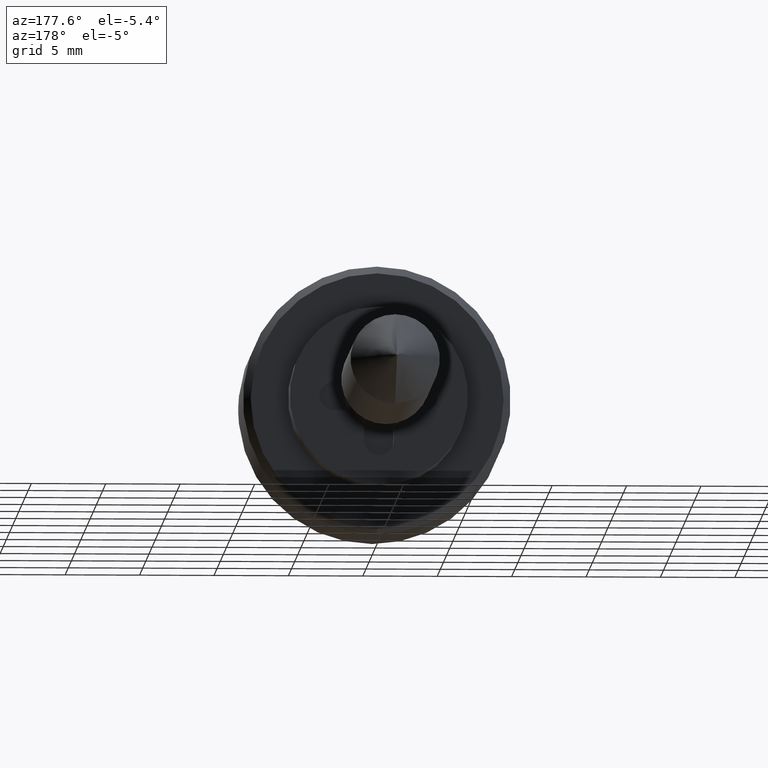
[diagram: clean part render]
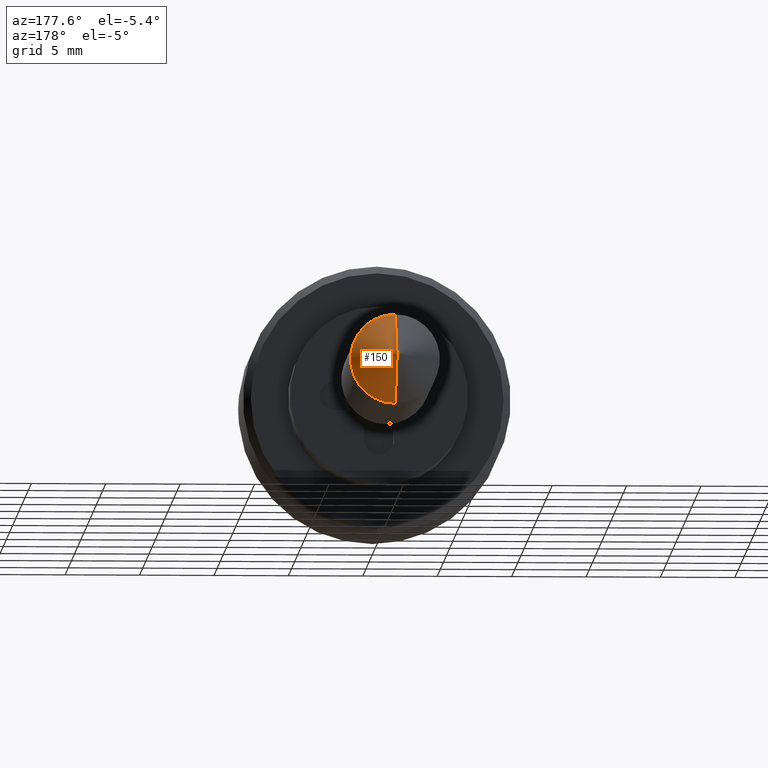
[diagram: same view with one face highlighted and labeled with its STEP entity id]
A machine part, auxiliary view. The second image highlights one B-rep face of the part: STEP entity #150.
In plain terms, the highlighted face is a freeform B-spline surface patch.
Its self-contained STEP definition (entity closure, byte-faithful):
#150=ADVANCED_FACE('',(#540),#539,.T.);
#539=( BOUNDED_SURFACE() B_SPLINE_SURFACE( 2,1,((#798,#799),(#800,#801),(#802,#803),(#804,#805),(#806,#807)), .UNSPECIFIED.,.F.,.F.,.F.) B_SPLINE_SURFACE_WITH_KNOTS((3,2,3),(2,2),(0.00000000000E+00,5.00000000000E-01,1.00000000000E+00),(0.00000000000E+00,1.00000000000E+00), .UNSPECIFIED. ) GEOMETRIC_REPRESENTATION_ITEM() RATIONAL_B_SPLINE_SURFACE(((1.00000000000E+00,1.00000000000E+00),(7.07106781187E-01,7.07106781187E-01),(1.00000000000E+00,1.00000000000E+00),(7.07106781187E-01,7.07106781187E-01),(1.00000000000E+00,1.00000000000E+00))) REPRESENTATION_ITEM('') SURFACE() );
#540=FACE_OUTER_BOUND('',#808,.T.);
#798=CARTESIAN_POINT('',(3.00000000000E+01,0.00000000000E+00,0.00000000000E+00));
#799=CARTESIAN_POINT('',(2.57573593129E+01,-1.03914726748E-15,-4.24264068712E+00));
#800=CARTESIAN_POINT('',(3.00000000000E+01,0.00000000000E+00,0.00000000000E+00));
#801=CARTESIAN_POINT('',(2.57573593129E+01,-4.24264068712E+00,-4.24264068712E+00));
#802=CARTESIAN_POINT('',(3.00000000000E+01,0.00000000000E+00,0.00000000000E+00));
#803=CARTESIAN_POINT('',(2.57573593129E+01,-4.24264068712E+00,7.79360450612E-16));
#804=CARTESIAN_POINT('',(3.00000000000E+01,0.00000000000E+00,0.00000000000E+00));
#805=CARTESIAN_POINT('',(2.57573593129E+01,-4.24264068712E+00,4.24264068712E+00));
#806=CARTESIAN_POINT('',(3.00000000000E+01,0.00000000000E+00,0.00000000000E+00));
#807=CARTESIAN_POINT('',(2.57573593129E+01,5.19573633741E-16,4.24264068712E+00));
#808=EDGE_LOOP('',(#1016,#1017,#1018));
#1016=ORIENTED_EDGE('',*,*,#1124,.F.);
#1017=ORIENTED_EDGE('',*,*,#1125,.F.);
#1018=ORIENTED_EDGE('',*,*,#1126,.T.);
#1124=EDGE_CURVE('',#1756,#1757,#1758,.T.);
#1125=EDGE_CURVE('',#1764,#1756,#1765,.T.);
#1126=EDGE_CURVE('',#1764,#1757,#1771,.T.);
#1756=VERTEX_POINT('',#2173);
#1757=VERTEX_POINT('',#2174);
#1758=CIRCLE('',#2178,3.00000000000E+00);
#1764=VERTEX_POINT('',#2179);
#1765=(BOUNDED_CURVE() B_SPLINE_CURVE(1,(#2180,#2181),.UNSPECIFIED.,.F.,.F.) B_SPLINE_CURVE_WITH_KNOTS((2,2),(0.00000000000E+00,7.07106783987E-01),.UNSPECIFIED.) CURVE() GEOMETRIC_REPRESENTATION_ITEM() RATIONAL_B_SPLINE_CURVE((1.00000000000E+00,1.00000000000E+00)) REPRESENTATION_ITEM('') );
#1771=(BOUNDED_CURVE() B_SPLINE_CURVE(1,(#2182,#2183),.UNSPECIFIED.,.F.,.F.) B_SPLINE_CURVE_WITH_KNOTS((2,2),(0.00000000000E+00,7.07106780467E-01),.UNSPECIFIED.) CURVE() GEOMETRIC_REPRESENTATION_ITEM() RATIONAL_B_SPLINE_CURVE((7.50000000000E-01,7.50000000000E-01)) REPRESENTATION_ITEM('') );
#2173=CARTESIAN_POINT('',(2.70000000000E+01,-1.48029736617E-16,-3.00000000000E+00));
#2174=CARTESIAN_POINT('',(2.70000000000E+01,0.00000000000E+00,3.00000000000E+00));
#2175=CARTESIAN_POINT('',(2.70000000000E+01,0.00000000000E+00,0.00000000000E+00));
#2176=DIRECTION('',(-1.00000000000E+00,0.00000000000E+00,0.00000000000E+00));
#2177=DIRECTION('',(0.00000000000E+00,-1.22460635382E-16,1.00000000000E+00));
#2178=AXIS2_PLACEMENT_3D('',#2175,#2176,#2177);
#2179=CARTESIAN_POINT('',(3.00000000000E+01,0.00000000000E+00,0.00000000000E+00));
#2180=CARTESIAN_POINT('',(3.00000000000E+01,0.00000000000E+00,0.00000000000E+00));
#2181=CARTESIAN_POINT('',(2.69999999881E+01,-7.34763815203E-16,-3.00000001188E+00));
#2182=CARTESIAN_POINT('',(3.00000000000E+01,0.00000000000E+00,0.00000000000E+00));
#2183=CARTESIAN_POINT('',(2.70000000031E+01,8.37382643779E-16,2.99999999695E+00));